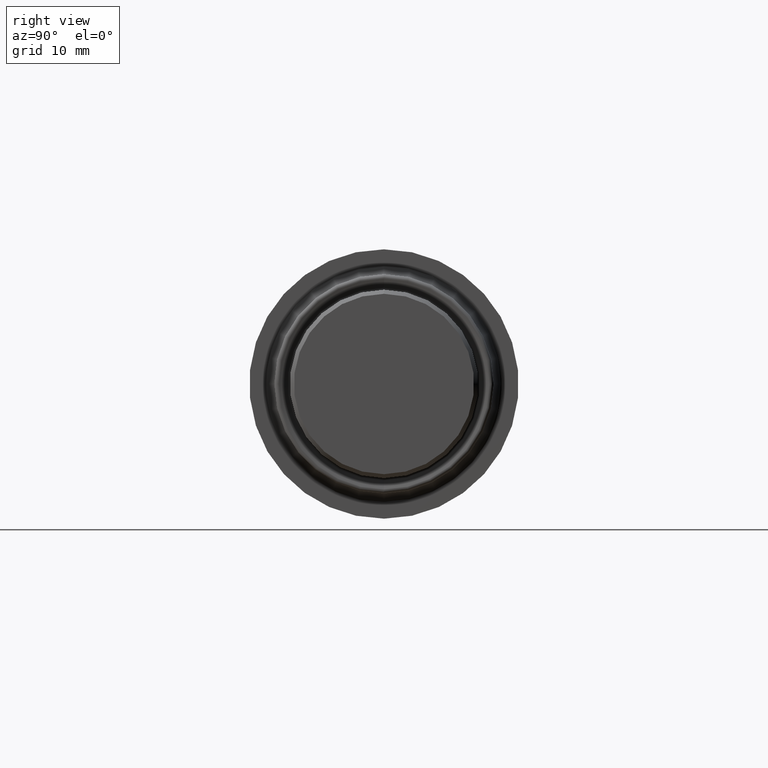
[diagram: clean part render]
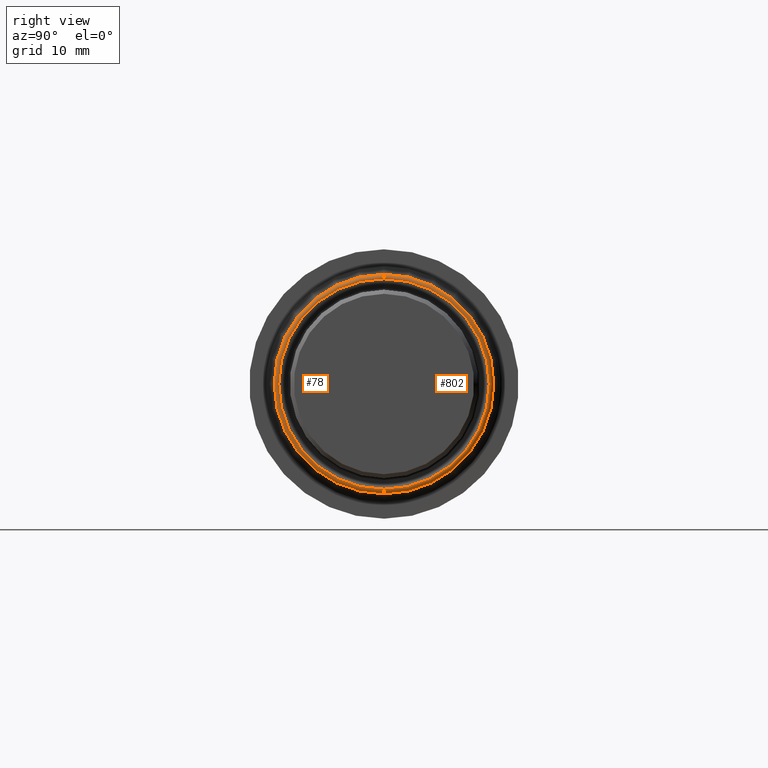
[diagram: same view with one multi-face feature highlighted, each face labeled with its STEP entity id]
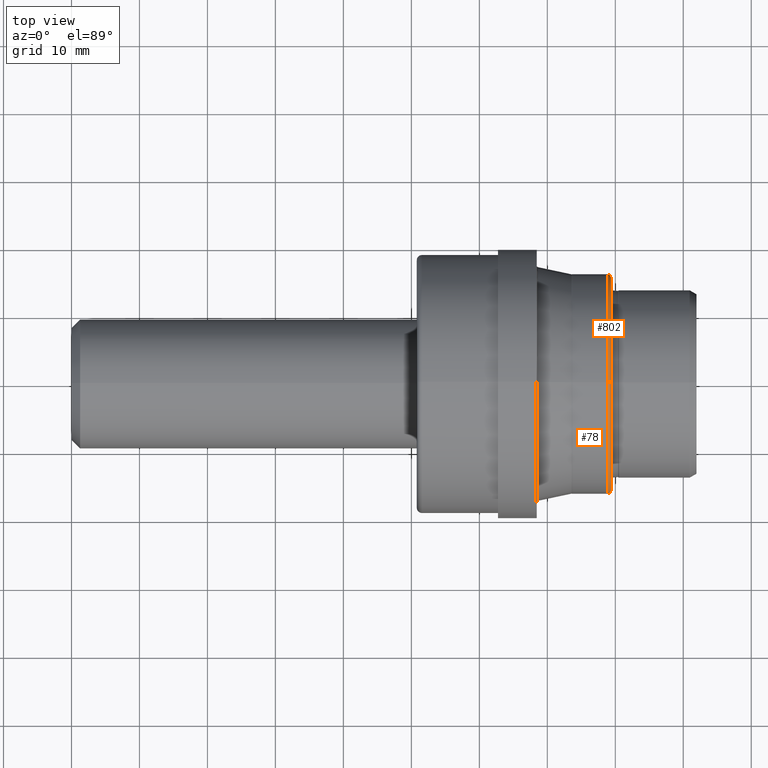
[diagram: same view with one multi-face feature highlighted, each face labeled with its STEP entity id]
A machine part, right view. The highlighted faces form ONE feature: a constant-radius fillet chain: 2 tangent blend faces with common blend radius 0.5334 mm. The faces share edges in the B-rep.
A second angle (top view) of the same feature is appended — it is thin or edge-on in the first view.
Their STEP definitions:
[1] entity #78 (Torus):
#20 = TOROIDAL_SURFACE ( 'NONE', #848, 0.6148500000000004517, 0.02100000000000000477 ) ;
#28 = AXIS2_PLACEMENT_3D ( 'NONE', #681, #752, #276 ) ;
#32 = DIRECTION ( 'NONE',  ( 1.000000000000000000, -0.0000000000000000000, -0.0000000000000000000 ) ) ;
#78 = ADVANCED_FACE ( 'NONE', ( #239 ), #20, .T. ) ;
#94 = VERTEX_POINT ( 'NONE', #345 ) ;
#166 = EDGE_CURVE ( 'NONE', #985, #816, #842, .T. ) ;
#171 = CIRCLE ( 'NONE', #1010, 0.6094148000528477604 ) ;
#231 = EDGE_CURVE ( 'NONE', #985, #94, #355, .T. ) ;
#239 = FACE_OUTER_BOUND ( 'NONE', #730, .T. ) ;
#276 = DIRECTION ( 'NONE',  ( 0.0000000000000000000, 0.0000000000000000000, -1.000000000000000000 ) ) ;
#288 = VERTEX_POINT ( 'NONE', #503 ) ;
#309 = DIRECTION ( 'NONE',  ( -0.0000000000000000000, -1.000000000000000000, -0.0000000000000000000 ) ) ;
#323 = DIRECTION ( 'NONE',  ( 0.0000000000000000000, 0.0000000000000000000, -1.000000000000000000 ) ) ;
#327 = ORIENTED_EDGE ( 'NONE', *, *, #457, .F. ) ;
#345 = CARTESIAN_POINT ( 'NONE',  ( 3.123943092090418538, 7.463178842377443928E-17, 0.6094148000528477604 ) ) ;
#348 = DIRECTION ( 'NONE',  ( 0.0000000000000000000, 1.000000000000000000, -1.224646799147353207E-16 ) ) ;
#355 = CIRCLE ( 'NONE', #647, 0.02099999999999999437 ) ;
#377 = CARTESIAN_POINT ( 'NONE',  ( 3.103658649738347819, 7.786916672378449634E-17, 0.6358500000000002483 ) ) ;
#397 = DIRECTION ( 'NONE',  ( 1.000000000000000000, -0.0000000000000000000, -0.0000000000000000000 ) ) ;
#457 = EDGE_CURVE ( 'NONE', #94, #288, #171, .T. ) ;
#503 = CARTESIAN_POINT ( 'NONE',  ( 3.123943092090418538, 0.0000000000000000000, -0.6094148000528477604 ) ) ;
#527 = CARTESIAN_POINT ( 'NONE',  ( 3.103658649738347819, 0.0000000000000000000, -0.6358500000000002483 ) ) ;
#589 = CARTESIAN_POINT ( 'NONE',  ( 3.103658649738347819, 0.0000000000000000000, 0.0000000000000000000 ) ) ;
#647 = AXIS2_PLACEMENT_3D ( 'NONE', #922, #348, #836 ) ;
#681 = CARTESIAN_POINT ( 'NONE',  ( 3.103658649738347819, 0.0000000000000000000, 0.0000000000000000000 ) ) ;
#688 = AXIS2_PLACEMENT_3D ( 'NONE', #709, #309, #932 ) ;
#696 = DIRECTION ( 'NONE',  ( 0.0000000000000000000, 0.0000000000000000000, -1.000000000000000000 ) ) ;
#709 = CARTESIAN_POINT ( 'NONE',  ( 3.103658649738347819, 0.0000000000000000000, -0.6148500000000004517 ) ) ;
#730 = EDGE_LOOP ( 'NONE', ( #805, #732, #826, #327 ) ) ;
#732 = ORIENTED_EDGE ( 'NONE', *, *, #166, .T. ) ;
#752 = DIRECTION ( 'NONE',  ( 1.000000000000000000, -0.0000000000000000000, -0.0000000000000000000 ) ) ;
#758 = CIRCLE ( 'NONE', #688, 0.02099999999999999437 ) ;
#801 = EDGE_CURVE ( 'NONE', #816, #288, #758, .T. ) ;
#805 = ORIENTED_EDGE ( 'NONE', *, *, #231, .F. ) ;
#816 = VERTEX_POINT ( 'NONE', #527 ) ;
#826 = ORIENTED_EDGE ( 'NONE', *, *, #801, .T. ) ;
#836 = DIRECTION ( 'NONE',  ( 0.0000000000000000000, 1.224646799147351235E-16, 1.000000000000000000 ) ) ;
#842 = CIRCLE ( 'NONE', #28, 0.6358500000000002483 ) ;
#848 = AXIS2_PLACEMENT_3D ( 'NONE', #589, #32, #696 ) ;
#922 = CARTESIAN_POINT ( 'NONE',  ( 3.103658649738347819, 7.529740844557506030E-17, 0.6148500000000004517 ) ) ;
#932 = DIRECTION ( 'NONE',  ( 0.0000000000000000000, 0.0000000000000000000, -1.000000000000000000 ) ) ;
#978 = CARTESIAN_POINT ( 'NONE',  ( 3.123943092090418538, 0.0000000000000000000, 0.0000000000000000000 ) ) ;
#985 = VERTEX_POINT ( 'NONE', #377 ) ;
#1010 = AXIS2_PLACEMENT_3D ( 'NONE', #978, #397, #323 ) ;
[2] entity #802 (Torus):
#94 = VERTEX_POINT ( 'NONE', #345 ) ;
#121 = CARTESIAN_POINT ( 'NONE',  ( 3.103658649738347819, 0.0000000000000000000, 0.0000000000000000000 ) ) ;
#139 = DIRECTION ( 'NONE',  ( 1.000000000000000000, -0.0000000000000000000, -0.0000000000000000000 ) ) ;
#199 = AXIS2_PLACEMENT_3D ( 'NONE', #824, #270, #743 ) ;
#210 = ORIENTED_EDGE ( 'NONE', *, *, #723, .T. ) ;
#231 = EDGE_CURVE ( 'NONE', #985, #94, #355, .T. ) ;
#259 = EDGE_LOOP ( 'NONE', ( #210, #495, #280, #739 ) ) ;
#263 = AXIS2_PLACEMENT_3D ( 'NONE', #614, #139, #363 ) ;
#270 = DIRECTION ( 'NONE',  ( 1.000000000000000000, -0.0000000000000000000, -0.0000000000000000000 ) ) ;
#280 = ORIENTED_EDGE ( 'NONE', *, *, #306, .F. ) ;
#288 = VERTEX_POINT ( 'NONE', #503 ) ;
#306 = EDGE_CURVE ( 'NONE', #288, #94, #737, .T. ) ;
#309 = DIRECTION ( 'NONE',  ( -0.0000000000000000000, -1.000000000000000000, -0.0000000000000000000 ) ) ;
#333 = FACE_OUTER_BOUND ( 'NONE', #259, .T. ) ;
#345 = CARTESIAN_POINT ( 'NONE',  ( 3.123943092090418538, 7.463178842377443928E-17, 0.6094148000528477604 ) ) ;
#348 = DIRECTION ( 'NONE',  ( 0.0000000000000000000, 1.000000000000000000, -1.224646799147353207E-16 ) ) ;
#355 = CIRCLE ( 'NONE', #647, 0.02099999999999999437 ) ;
#363 = DIRECTION ( 'NONE',  ( 0.0000000000000000000, 0.0000000000000000000, -1.000000000000000000 ) ) ;
#377 = CARTESIAN_POINT ( 'NONE',  ( 3.103658649738347819, 7.786916672378449634E-17, 0.6358500000000002483 ) ) ;
#495 = ORIENTED_EDGE ( 'NONE', *, *, #231, .T. ) ;
#503 = CARTESIAN_POINT ( 'NONE',  ( 3.123943092090418538, 0.0000000000000000000, -0.6094148000528477604 ) ) ;
#524 = DIRECTION ( 'NONE',  ( 1.000000000000000000, -0.0000000000000000000, -0.0000000000000000000 ) ) ;
#527 = CARTESIAN_POINT ( 'NONE',  ( 3.103658649738347819, 0.0000000000000000000, -0.6358500000000002483 ) ) ;
#614 = CARTESIAN_POINT ( 'NONE',  ( 3.103658649738347819, 0.0000000000000000000, 0.0000000000000000000 ) ) ;
#622 = DIRECTION ( 'NONE',  ( 0.0000000000000000000, 0.0000000000000000000, -1.000000000000000000 ) ) ;
#647 = AXIS2_PLACEMENT_3D ( 'NONE', #922, #348, #836 ) ;
#688 = AXIS2_PLACEMENT_3D ( 'NONE', #709, #309, #932 ) ;
#709 = CARTESIAN_POINT ( 'NONE',  ( 3.103658649738347819, 0.0000000000000000000, -0.6148500000000004517 ) ) ;
#723 = EDGE_CURVE ( 'NONE', #816, #985, #840, .T. ) ;
#737 = CIRCLE ( 'NONE', #199, 0.6094148000528477604 ) ;
#739 = ORIENTED_EDGE ( 'NONE', *, *, #801, .F. ) ;
#743 = DIRECTION ( 'NONE',  ( 0.0000000000000000000, 0.0000000000000000000, -1.000000000000000000 ) ) ;
#758 = CIRCLE ( 'NONE', #688, 0.02099999999999999437 ) ;
#801 = EDGE_CURVE ( 'NONE', #816, #288, #758, .T. ) ;
#802 = ADVANCED_FACE ( 'NONE', ( #333 ), #967, .T. ) ;
#806 = AXIS2_PLACEMENT_3D ( 'NONE', #121, #524, #622 ) ;
#816 = VERTEX_POINT ( 'NONE', #527 ) ;
#824 = CARTESIAN_POINT ( 'NONE',  ( 3.123943092090418538, 0.0000000000000000000, 0.0000000000000000000 ) ) ;
#836 = DIRECTION ( 'NONE',  ( 0.0000000000000000000, 1.224646799147351235E-16, 1.000000000000000000 ) ) ;
#840 = CIRCLE ( 'NONE', #263, 0.6358500000000002483 ) ;
#922 = CARTESIAN_POINT ( 'NONE',  ( 3.103658649738347819, 7.529740844557506030E-17, 0.6148500000000004517 ) ) ;
#932 = DIRECTION ( 'NONE',  ( 0.0000000000000000000, 0.0000000000000000000, -1.000000000000000000 ) ) ;
#967 = TOROIDAL_SURFACE ( 'NONE', #806, 0.6148500000000004517, 0.02100000000000000477 ) ;
#985 = VERTEX_POINT ( 'NONE', #377 ) ;